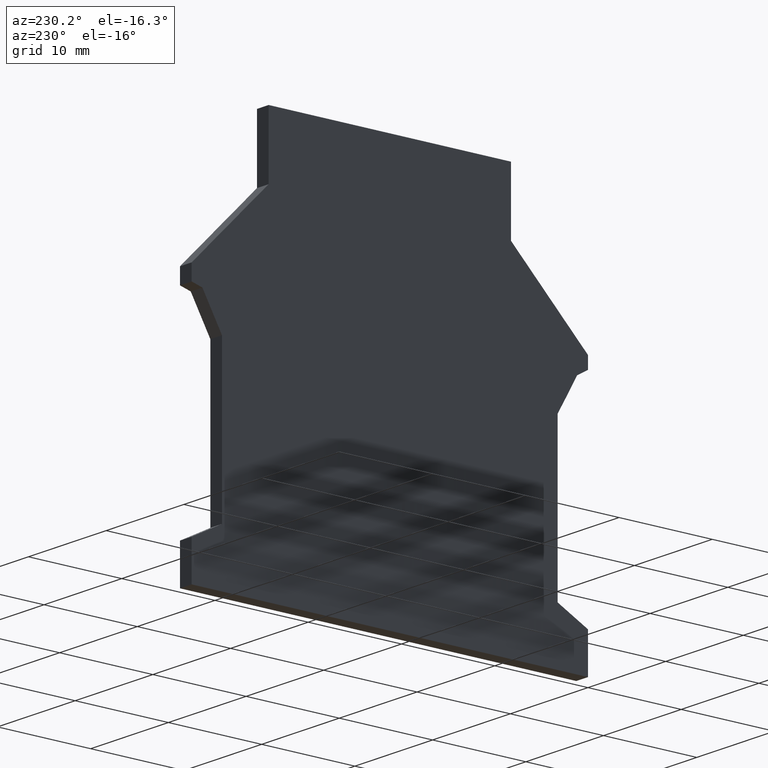
[diagram: clean part render]
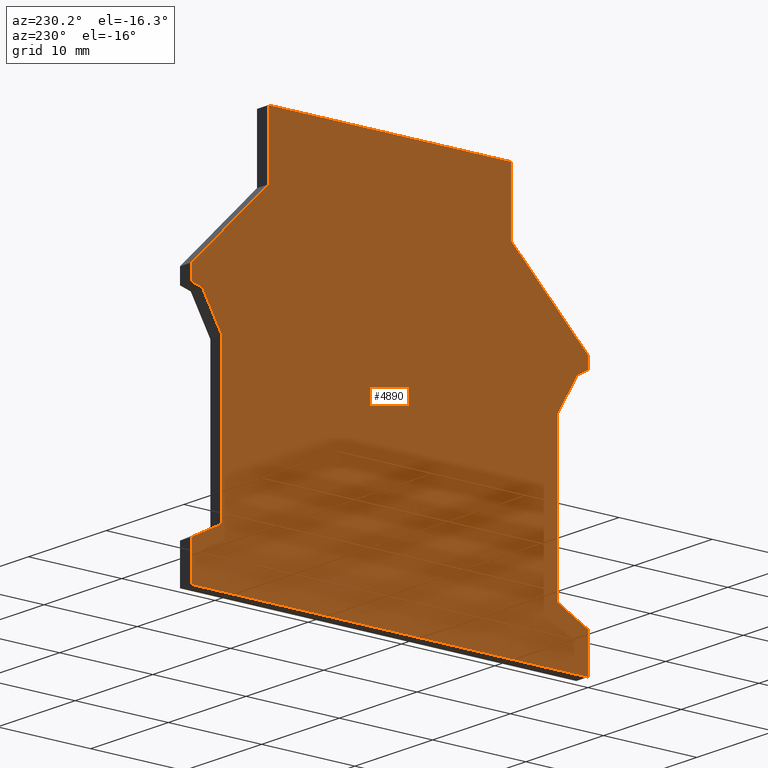
[diagram: same view with one face highlighted and labeled with its STEP entity id]
A machine part, auxiliary view. The second image highlights one B-rep face of the part: STEP entity #4890.
In plain terms, the highlighted planar face has unit normal (1, -0, 0).
Its self-contained STEP definition (entity closure, byte-faithful):
#100=CARTESIAN_POINT('',(27.9666321988984,62.4035915835004,
-7.78709572820555E-16));
#110=VERTEX_POINT('',#100);
#280=CARTESIAN_POINT('',(25.8666321988984,66.1035915835004,
-7.78709572820555E-16));
#290=VERTEX_POINT('',#280);
#320=CARTESIAN_POINT('',(63.3848868814258,0.,-7.78709572820555E-16));
#330=DIRECTION('',(0.493605519458383,-0.869685915236196,0.));
#340=VECTOR('',#330,1.);
#350=LINE('',#320,#340);
#360=EDGE_CURVE('',#290,#110,#350,.T.);
#2070=CARTESIAN_POINT('',(32.9666321988984,83.1035915835004,
8.86450742699044E-16));
#2080=VERTEX_POINT('',#2070);
#2160=CARTESIAN_POINT('',(58.9666321988984,83.1035915835004,
-5.36844862369917E-16));
#2170=VERTEX_POINT('',#2160);
#2200=CARTESIAN_POINT('',(0.,83.1035915835004,2.69111469356893E-15));
#2210=DIRECTION('',(-1.,0.,5.47421386564985E-17));
#2220=VECTOR('',#2210,1.);
#2230=LINE('',#2200,#2220);
#2240=EDGE_CURVE('',#2170,#2080,#2230,.T.);
#2450=CARTESIAN_POINT('',(67.2166321988985,44.5035915835004,
-1.51978719215006E-15));
#2460=VERTEX_POINT('',#2450);
#2540=CARTESIAN_POINT('',(67.2166321988984,40.4035915835004,
-9.8846750628603E-16));
#2550=VERTEX_POINT('',#2540);
#2580=CARTESIAN_POINT('',(67.2166321988984,0.,-9.8846750628603E-16));
#2590=DIRECTION('',(0.,1.,0.));
#2600=VECTOR('',#2590,1.);
#2610=LINE('',#2580,#2600);
#2620=EDGE_CURVE('',#2550,#2460,#2610,.T.);
#2830=CARTESIAN_POINT('',(24.7166321988984,66.4117331547962,
1.33807338661516E-15));
#2840=VERTEX_POINT('',#2830);
#2920=CARTESIAN_POINT('',(24.7166321988984,68.0535915835004,
5.06347253315185E-15));
#2930=VERTEX_POINT('',#2920);
#2960=CARTESIAN_POINT('',(24.7166321988984,0.,1.33807338661516E-15));
#2970=DIRECTION('',(0.,-1.,0.));
#2980=VECTOR('',#2970,1.);
#2990=LINE('',#2960,#2980);
#3000=EDGE_CURVE('',#2930,#2840,#2990,.T.);
#3170=CARTESIAN_POINT('',(0.,73.0345347921079,2.69111469356893E-15));
#3180=DIRECTION('',(0.96592582628907,-0.258819045102515,
-5.55111512312578E-17));
#3190=VECTOR('',#3180,1.);
#3200=LINE('',#3170,#3190);
#3210=EDGE_CURVE('',#2840,#290,#3200,.T.);
#3470=CARTESIAN_POINT('',(32.9666321988984,76.3035915835004,
8.86450742699044E-16));
#3480=VERTEX_POINT('',#3470);
#3510=CARTESIAN_POINT('',(-43.336959384602,0.,5.06347253315185E-15));
#3520=DIRECTION('',(-0.707106781186547,-0.707106781186548,0.));
#3530=VECTOR('',#3520,1.);
#3540=LINE('',#3510,#3530);
#3550=EDGE_CURVE('',#3480,#2930,#3540,.T.);
#3720=CARTESIAN_POINT('',(32.9666321988984,0.,8.86450742699044E-16));
#3730=DIRECTION('',(0.,-1.,0.));
#3740=VECTOR('',#3730,1.);
#3750=LINE('',#3720,#3740);
#3760=EDGE_CURVE('',#2080,#3480,#3750,.T.);
#3910=CARTESIAN_POINT('',(18.7384011988984,36.1335891835004,
1.66533453693773E-15));
#3920=DIRECTION('',(-5.47421386564985E-17,-0.,-1.));
#3930=DIRECTION('',(1.,0.,-5.47421386564985E-17));
#3940=AXIS2_PLACEMENT_3D('',#3910,#3920,#3930);
#3950=PLANE('',#3940);
#3960=ORIENTED_EDGE('',*,*,#2240,.T.);
#3970=CARTESIAN_POINT('',(58.9666321988984,0.,-5.36844862369917E-16));
#3980=DIRECTION('',(0.,1.,0.));
#3990=VECTOR('',#3980,1.);
#4000=LINE('',#3970,#3990);
#4010=CARTESIAN_POINT('',(58.9666321988984,76.3035915835004,
-4.71386665282273E-15));
#4020=VERTEX_POINT('',#4010);
#4030=EDGE_CURVE('',#4020,#2170,#4000,.T.);
#4040=ORIENTED_EDGE('',*,*,#4030,.T.);
#4050=CARTESIAN_POINT('',(135.270223782399,0.,-4.71386665282273E-15));
#4060=DIRECTION('',(-0.707106781186547,0.707106781186548,0.));
#4070=VECTOR('',#4060,1.);
#4080=LINE('',#4050,#4070);
#4090=CARTESIAN_POINT('',(67.2166321988984,68.0535915835004,
-9.8846750628603E-16));
#4100=VERTEX_POINT('',#4090);
#4110=EDGE_CURVE('',#4100,#4020,#4080,.T.);
#4120=ORIENTED_EDGE('',*,*,#4110,.T.);
#4130=CARTESIAN_POINT('',(67.2166321988984,0.,-9.8846750628603E-16));
#4140=DIRECTION('',(0.,1.,0.));
#4150=VECTOR('',#4140,1.);
#4160=LINE('',#4130,#4150);
#4170=CARTESIAN_POINT('',(67.2166321988984,66.7675443930685,
-9.8846750628603E-16));
#4180=VERTEX_POINT('',#4170);
#4190=EDGE_CURVE('',#4180,#4100,#4160,.T.);
#4200=ORIENTED_EDGE('',*,*,#4190,.T.);
#4210=CARTESIAN_POINT('',(0.,27.9600036990134,2.69111469356893E-15));
#4220=DIRECTION('',(0.866025403784433,0.50000000000001,0.));
#4230=VECTOR('',#4220,1.);
#4240=LINE('',#4210,#4230);
#4250=CARTESIAN_POINT('',(66.0666321988984,66.1035915835004,
1.12831545314969E-15));
#4260=VERTEX_POINT('',#4250);
#4270=EDGE_CURVE('',#4260,#4180,#4240,.T.);
#4280=ORIENTED_EDGE('',*,*,#4270,.T.);
#4290=CARTESIAN_POINT('',(28.5483775163709,0.,1.12831545314969E-15));
#4300=DIRECTION('',(0.493605519458384,0.869685915236195,0.));
#4310=VECTOR('',#4300,1.);
#4320=LINE('',#4290,#4310);
#4330=CARTESIAN_POINT('',(63.9666321988984,62.4035915835004,
1.12831545314969E-15));
#4340=VERTEX_POINT('',#4330);
#4350=EDGE_CURVE('',#4340,#4260,#4320,.T.);
#4360=ORIENTED_EDGE('',*,*,#4350,.T.);
#4370=CARTESIAN_POINT('',(63.9666321988984,0.,-8.1055555565241E-16));
#4380=DIRECTION('',(0.,1.,0.));
#4390=VECTOR('',#4380,1.);
#4400=LINE('',#4370,#4390);
#4410=CARTESIAN_POINT('',(63.9666321988985,46.2035915835003,
-1.31618533527496E-15));
#4420=VERTEX_POINT('',#4410);
#4430=EDGE_CURVE('',#4420,#4340,#4400,.T.);
#4440=ORIENTED_EDGE('',*,*,#4430,.T.);
#4450=CARTESIAN_POINT('',(0.,79.6630607336934,2.69111469356893E-15));
#4460=DIRECTION('',(-0.88609821280882,0.463497526699998,
5.55111512312578E-17));
#4470=VECTOR('',#4460,1.);
#4480=LINE('',#4450,#4470);
#4490=EDGE_CURVE('',#2460,#4420,#4480,.T.);
#4500=ORIENTED_EDGE('',*,*,#4490,.T.);
#4510=ORIENTED_EDGE('',*,*,#2620,.T.);
#4520=CARTESIAN_POINT('',(0.,40.4035915835004,2.69111469356893E-15));
#4530=DIRECTION('',(1.,0.,-5.47421386564985E-17));
#4540=VECTOR('',#4530,1.);
#4550=LINE('',#4520,#4540);
#4560=CARTESIAN_POINT('',(24.7166321988984,40.4035915835004,
1.33807338661516E-15));
#4570=VERTEX_POINT('',#4560);
#4580=EDGE_CURVE('',#4570,#2550,#4550,.T.);
#4590=ORIENTED_EDGE('',*,*,#4580,.T.);
#4600=CARTESIAN_POINT('',(24.7166321988984,0.,1.33807338661516E-15));
#4610=DIRECTION('',(0.,-1.,0.));
#4620=VECTOR('',#4610,1.);
#4630=LINE('',#4600,#4620);
#4640=CARTESIAN_POINT('',(24.7166321988984,44.5035915835004,
1.1426986285244E-15));
#4650=VERTEX_POINT('',#4640);
#4660=EDGE_CURVE('',#4650,#4570,#4630,.T.);
#4670=ORIENTED_EDGE('',*,*,#4660,.T.);
#4680=CARTESIAN_POINT('',(0.,31.5748916640767,2.69111469356893E-15));
#4690=DIRECTION('',(-0.886098212808821,-0.463497526699996,
5.55111512312578E-17));
#4700=VECTOR('',#4690,1.);
#4710=LINE('',#4680,#4700);
#4720=CARTESIAN_POINT('',(27.9666321988984,46.2035915835004,
1.16016143598154E-15));
#4730=VERTEX_POINT('',#4720);
#4740=EDGE_CURVE('',#4730,#4650,#4710,.T.);
#4750=ORIENTED_EDGE('',*,*,#4740,.T.);
#4760=CARTESIAN_POINT('',(27.9666321988984,0.,1.16016143598154E-15));
#4770=DIRECTION('',(0.,-1.,0.));
#4780=VECTOR('',#4770,1.);
#4790=LINE('',#4760,#4780);
#4800=EDGE_CURVE('',#110,#4730,#4790,.T.);
#4810=ORIENTED_EDGE('',*,*,#4800,.T.);
#4820=ORIENTED_EDGE('',*,*,#360,.T.);
#4830=ORIENTED_EDGE('',*,*,#3210,.T.);
#4840=ORIENTED_EDGE('',*,*,#3000,.T.);
#4850=ORIENTED_EDGE('',*,*,#3550,.T.);
#4860=ORIENTED_EDGE('',*,*,#3760,.T.);
#4870=EDGE_LOOP('',(#4860,#4850,#4840,#4830,#4820,#4810,#4750,#4670,
#4590,#4510,#4500,#4440,#4360,#4280,#4200,#4120,#4040,#3960));
#4880=FACE_OUTER_BOUND('',#4870,.T.);
#4890=ADVANCED_FACE('',(#4880),#3950,.F.);